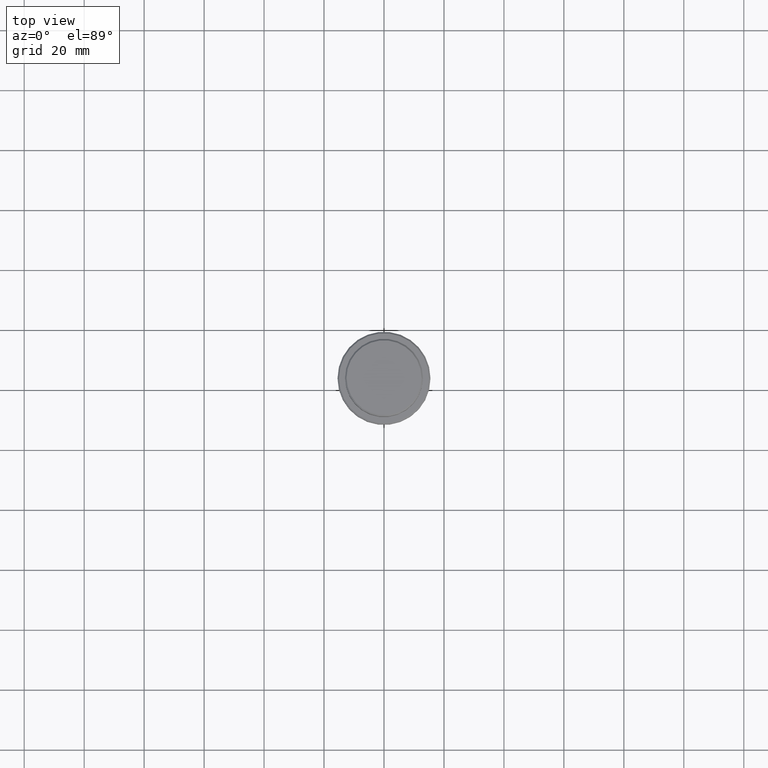
[diagram: clean part render]
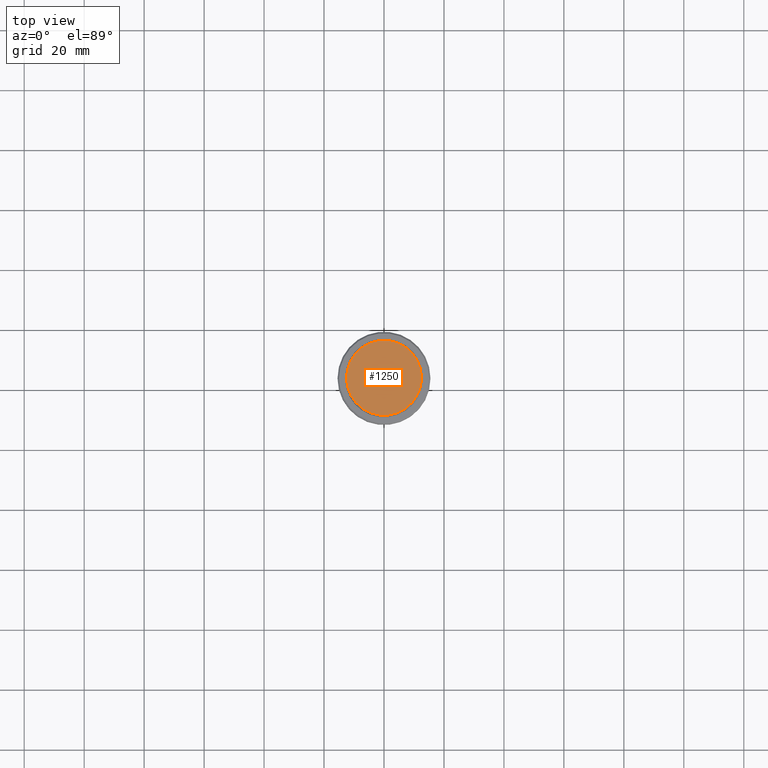
[diagram: same view with one face highlighted and labeled with its STEP entity id]
A machine part, top view. The second image highlights one B-rep face of the part: STEP entity #1250.
In plain terms, the highlighted planar face has unit normal (0, -0, 1).
Its self-contained STEP definition (entity closure, byte-faithful):
#34 = DIRECTION ( 'NONE',  ( -0.000000000000000000, -0.000000000000000000, 1.000000000000000000 ) ) ;
#44 = CARTESIAN_POINT ( 'NONE',  ( 12.50000000000006750, 1.561424668912879450E-15, 0.000000000000000000 ) ) ;
#144 = PLANE ( 'NONE',  #159 ) ;
#159 = AXIS2_PLACEMENT_3D ( 'NONE', #492, #929, #1358 ) ;
#198 = CIRCLE ( 'NONE', #953, 12.50000000000006750 ) ;
#254 = EDGE_CURVE ( 'NONE', #487, #812, #689, .T. ) ;
#256 = DIRECTION ( 'NONE',  ( -0.000000000000000000, -0.000000000000000000, 1.000000000000000000 ) ) ;
#276 = CARTESIAN_POINT ( 'NONE',  ( 0.000000000000000000, 0.000000000000000000, 0.000000000000000000 ) ) ;
#337 = ORIENTED_EDGE ( 'NONE', *, *, #254, .T. ) ;
#354 = EDGE_CURVE ( 'NONE', #812, #487, #198, .T. ) ;
#374 = CARTESIAN_POINT ( 'NONE',  ( 0.000000000000000000, 0.000000000000000000, 0.000000000000000000 ) ) ;
#468 = ORIENTED_EDGE ( 'NONE', *, *, #354, .T. ) ;
#487 = VERTEX_POINT ( 'NONE', #643 ) ;
#492 = CARTESIAN_POINT ( 'NONE',  ( 0.000000000000000000, 0.000000000000000000, 0.000000000000000000 ) ) ;
#575 = DIRECTION ( 'NONE',  ( 1.000000000000000000, 0.000000000000000000, 0.000000000000000000 ) ) ;
#643 = CARTESIAN_POINT ( 'NONE',  ( -12.50000000000006750, 0.000000000000000000, 0.000000000000000000 ) ) ;
#689 = CIRCLE ( 'NONE', #1112, 12.50000000000006750 ) ;
#812 = VERTEX_POINT ( 'NONE', #44 ) ;
#927 = DIRECTION ( 'NONE',  ( 1.000000000000000000, 0.000000000000000000, 0.000000000000000000 ) ) ;
#929 = DIRECTION ( 'NONE',  ( 0.000000000000000000, -0.000000000000000000, 1.000000000000000000 ) ) ;
#935 = FACE_OUTER_BOUND ( 'NONE', #1079, .T. ) ;
#953 = AXIS2_PLACEMENT_3D ( 'NONE', #276, #34, #927 ) ;
#1079 = EDGE_LOOP ( 'NONE', ( #337, #468 ) ) ;
#1112 = AXIS2_PLACEMENT_3D ( 'NONE', #374, #256, #575 ) ;
#1250 = ADVANCED_FACE ( 'NONE', ( #935 ), #144, .T. ) ;
#1358 = DIRECTION ( 'NONE',  ( 1.000000000000000000, 0.000000000000000000, 0.000000000000000000 ) ) ;